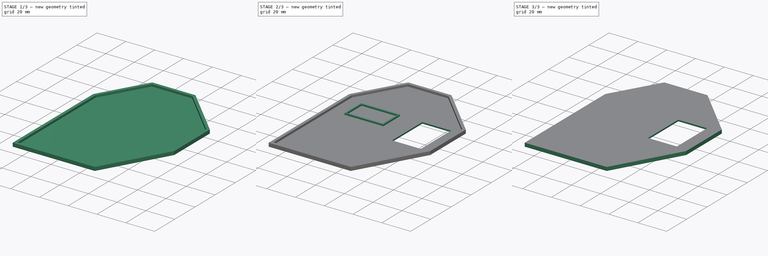
[diagram: build sequence overview — one tinted view per stage of 3, left to right]
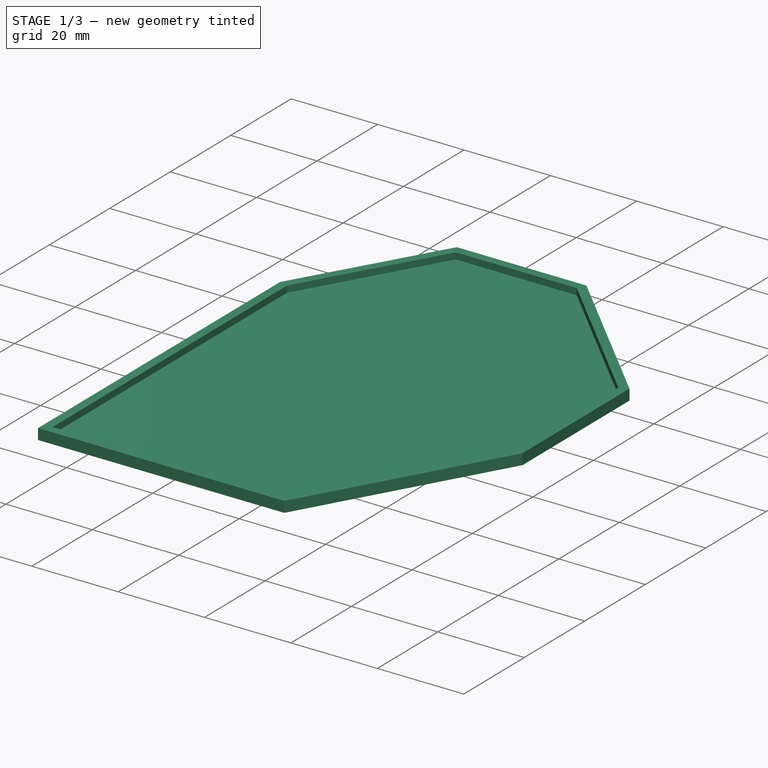
[diagram: stage 1 of 3 — iso view after this stage's code; geometry added in this stage tinted green]
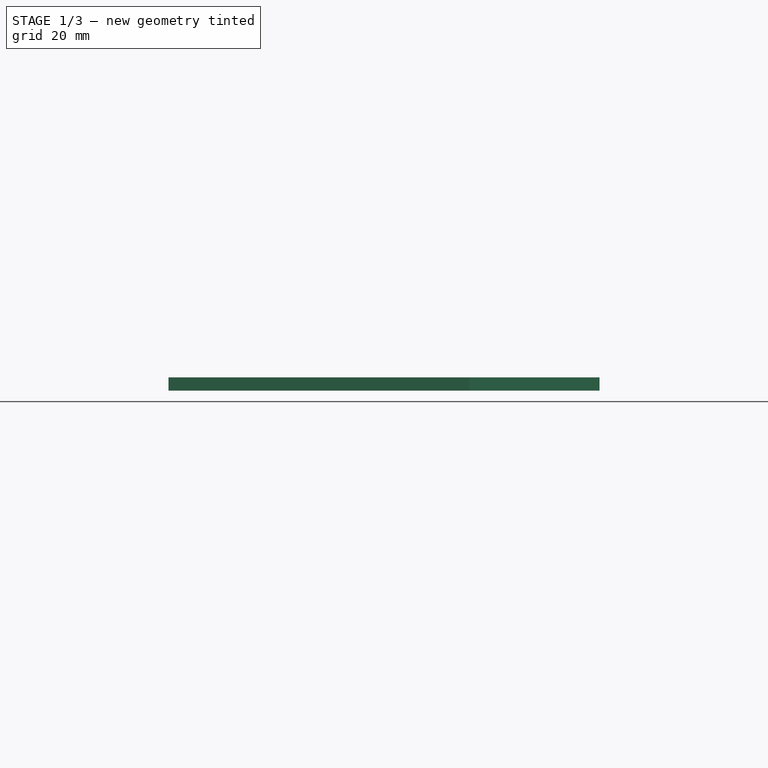
[diagram: stage 1 of 3 — front view after this stage's code; geometry added in this stage tinted green]
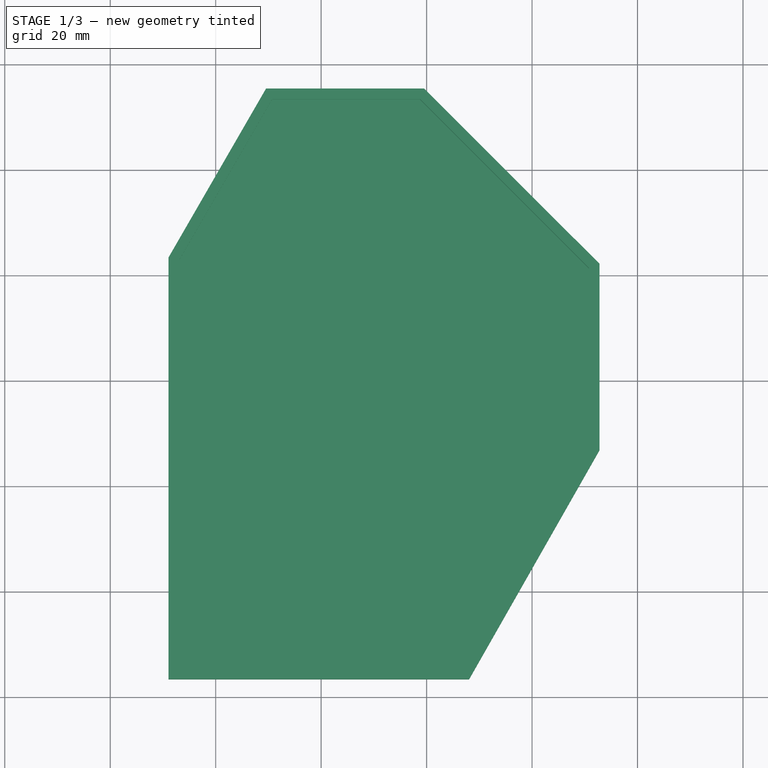
[diagram: stage 1 of 3 — top view after this stage's code; geometry added in this stage tinted green]
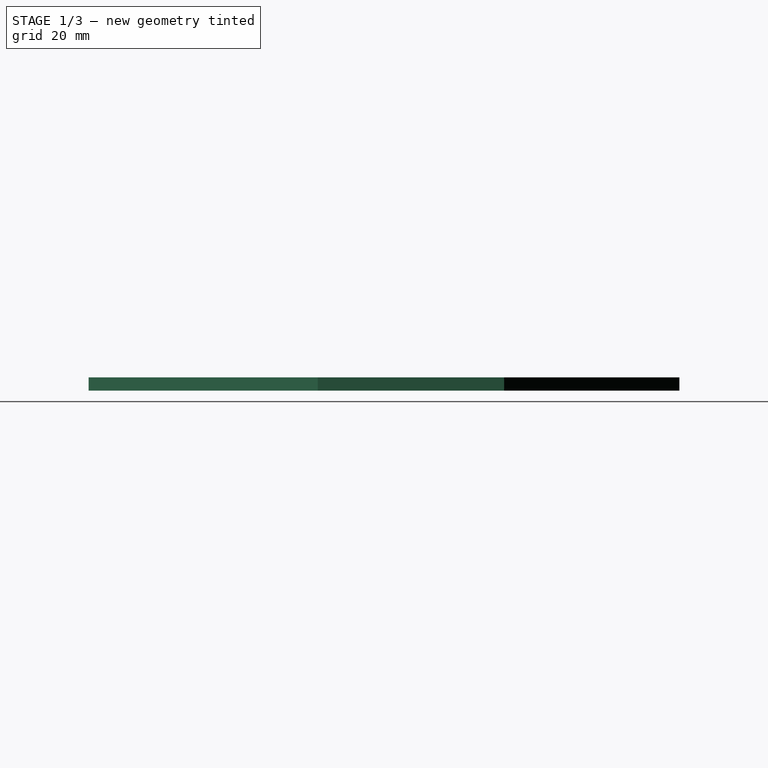
[diagram: stage 1 of 3 — right view after this stage's code; geometry added in this stage tinted green]
FCSTD DOCUMENT  (FreeCAD 0.17R10002 (Git))
Label: WaterMeas_holder
License: All rights reserved
LicenseURL: http://en.wikipedia.org/wiki/All_rights_reserved
objects: Sketcher::SketchObject×6, PartDesign::Pocket×4, PartDesign::Pad×2, PartDesign::Body×1, Part::Mirroring×1
note: 20 computed .brp shape members not serialized (recipe doc carries the construction recipe); baked Part::Feature solids carry a one-line shape summary decoded from their .brp

FEATURE [Sketcher::SketchObject] Sketch
  MapMode = 5
  Support = -> [XY_Plane]
  sketch-geometry (7):
    g0: LineSegment StartX=-28.9463 StartY=-36.6031 StartZ=0 EndX=-28.9463 EndY=43.3969 EndZ=0
    g1: LineSegment StartX=-28.9463 StartY=43.3969 StartZ=0 EndX=-10.4463 EndY=75.4399 EndZ=0
    g2: LineSegment StartX=-10.4463 StartY=75.4399 StartZ=0 EndX=19.5537 EndY=75.4399 EndZ=0
    g3: LineSegment StartX=19.5537 StartY=75.4399 StartZ=0 EndX=52.7877 EndY=42.2058 EndZ=0
    g4: LineSegment StartX=52.7877 StartY=42.2058 StartZ=0 EndX=52.7877 EndY=6.85066 EndZ=0
    g5: LineSegment StartX=52.7877 StartY=6.85066 StartZ=0 EndX=28.0537 EndY=-36.6031 EndZ=0
    g6: LineSegment StartX=28.0537 StartY=-36.6031 StartZ=0 EndX=-28.9463 EndY=-36.6031 EndZ=0
  constraints (19):
    c: Vertical(g0)
    c: Coincident(g0,g1)
    c: Coincident(g1,g2)
    c: Horizontal(g2)
    c: Coincident(g2,g3)
    c: Coincident(g3,g4)
    c: Coincident(g4,g5)
    c: Coincident(g5,g6)
    c: Coincident(g6,g0)
    c: Horizontal(g6)
    c: Vertical(g4)
    c: Distance(g6) = 57
    c: Distance(g5) = 50
    c: Distance(g1) = 37
    c: Distance(g2) = 30
    c: Distance(g0) = 80
    c: Angle(g1,g2) = 2.0944
    c: Angle(g2,g3) = 2.35619
    c: Distance(g3) = 47
FEATURE [PartDesign::Pad] Pad
  Length = 2.5
  Length2 = 100
  Profile = -> Sketch
  Type = 0
FEATURE [Sketcher::SketchObject] Sketch001
  ExternalGeometry = -> [Pad]
  MapMode = 5
  Placement = pos=(0,0,2.5) rot=(0,0,1;0rad)
  Support = -> [Pad]
  sketch-geometry (7):
    g0: LineSegment StartX=50.7877 StartY=41.3774 StartZ=0 EndX=18.7253 EndY=73.4399 EndZ=0
    g1: LineSegment StartX=18.7253 StartY=73.4399 StartZ=0 EndX=-9.29161 EndY=73.4399 EndZ=0
    g2: LineSegment StartX=-9.29161 StartY=73.4399 StartZ=0 EndX=-26.9463 EndY=42.861 EndZ=0
    g3: LineSegment StartX=-26.9463 StartY=42.861 StartZ=0 EndX=-26.9463 EndY=-34.6031 EndZ=0
    g4: LineSegment StartX=-26.9463 StartY=-34.6031 StartZ=0 EndX=26.8908 EndY=-34.6031 EndZ=0
    g5: LineSegment StartX=26.8908 StartY=-34.6031 StartZ=0 EndX=50.7877 EndY=7.37999 EndZ=0
    g6: LineSegment StartX=50.7877 StartY=7.37999 StartZ=0 EndX=50.7877 EndY=41.3774 EndZ=0
  constraints (21):
    c: Coincident(g0,g1)
    c: Coincident(g1,g2)
    c: Coincident(g2,g3)
    c: Vertical(g3)
    c: Coincident(g3,g4)
    c: Coincident(g4,g5)
    c: Coincident(g5,g6)
    c: Coincident(g6,g0)
    c: Parallel(g2,g-5)
    c: Parallel(g1,g-4)
    c: Parallel(g0,g-3)
    c: Parallel(g6,g-9)
    c: Parallel(g5,g-8)
    c: Parallel(g4,g-7)
    c: Distance(g-9,g0) = 2
    c: Distance(g-9,g6) = 2
    c: Distance(g-8,g5) = 2
    c: Distance(g-7,g4) = 2
    c: Distance(g-6,g3) = 2
    c: Distance(g-5,g2) = 2
    c: Distance(g-4,g1) = 2
FEATURE [PartDesign::Pocket] Pocket
  BaseFeature = -> Pad
  Length = 1.5
  Profile = -> Sketch001
  Type = 0
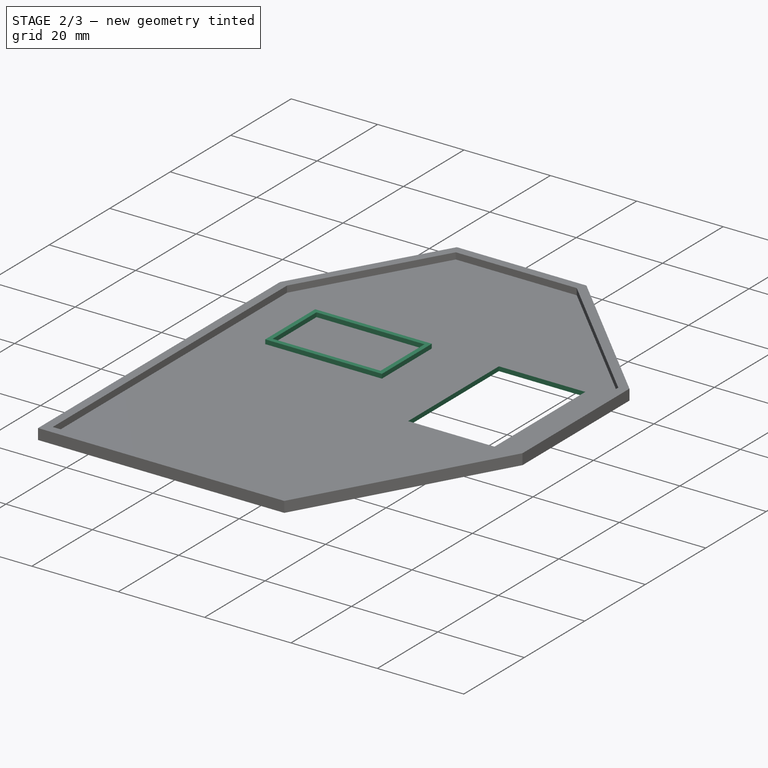
[diagram: stage 2 of 3 — iso view after this stage's code; geometry added in this stage tinted green]
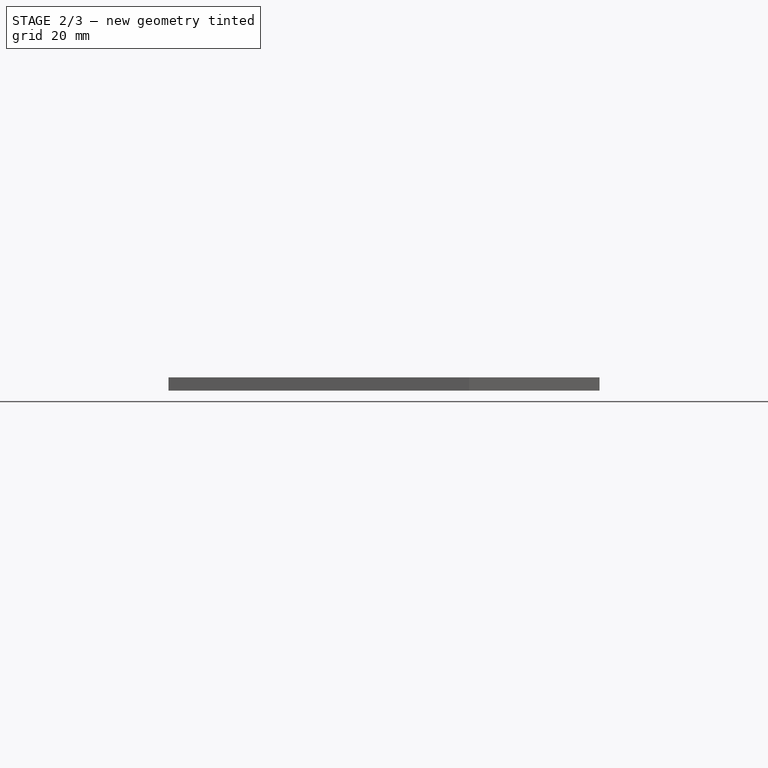
[diagram: stage 2 of 3 — front view after this stage's code; geometry added in this stage tinted green]
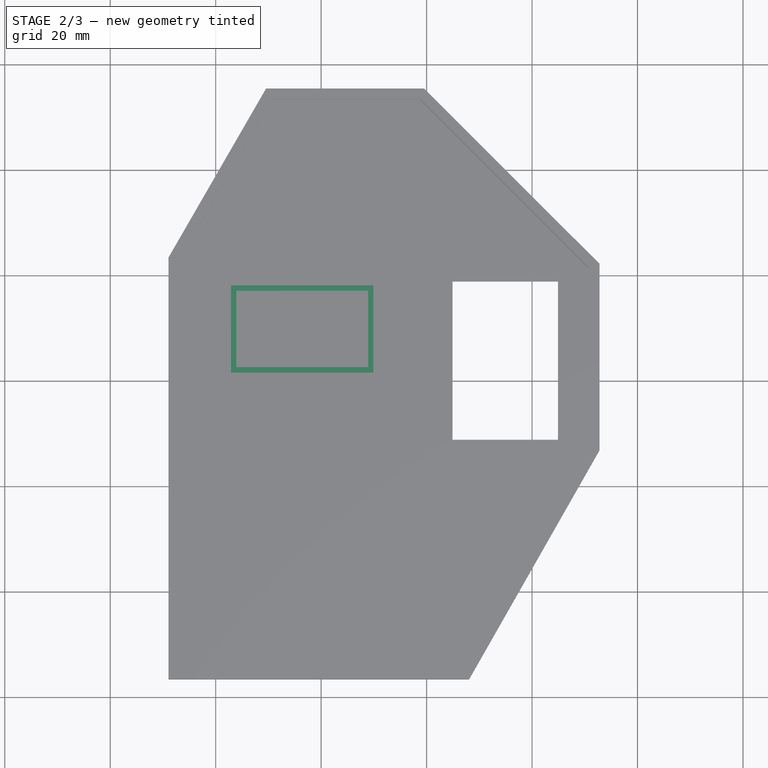
[diagram: stage 2 of 3 — top view after this stage's code; geometry added in this stage tinted green]
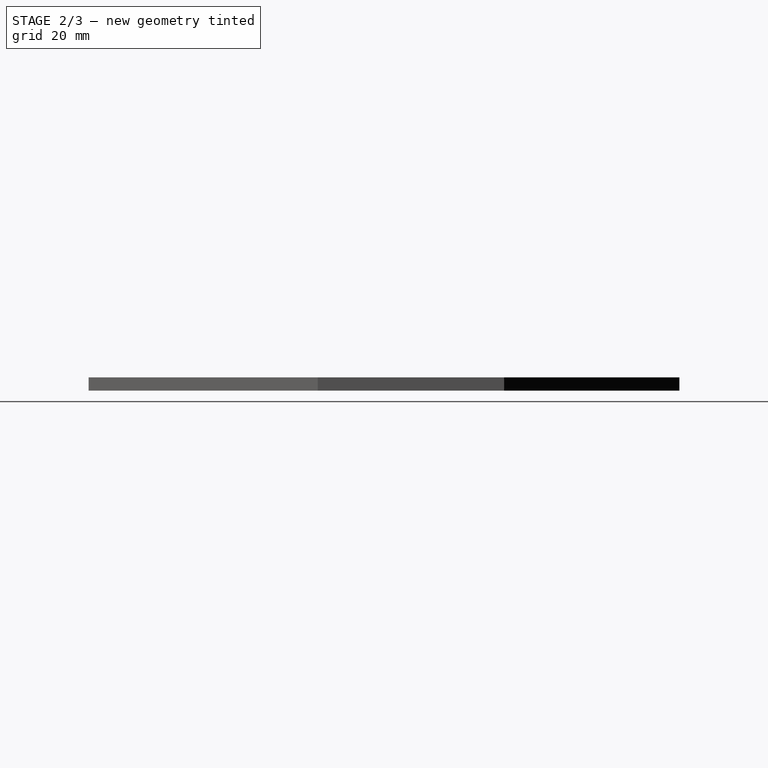
[diagram: stage 2 of 3 — right view after this stage's code; geometry added in this stage tinted green]
FEATURE [Sketcher::SketchObject] Sketch002
  ExternalGeometry = -> [Pocket]
  MapMode = 5
  Placement = pos=(0,0,1) rot=(0,0,1;0rad)
  Support = -> [Pocket]
  sketch-geometry (4):
    g0: LineSegment StartX=44.9101 StartY=38.8507 StartZ=0 EndX=24.9101 EndY=38.8507 EndZ=0
    g1: LineSegment StartX=24.9101 StartY=38.8507 StartZ=0 EndX=24.9101 EndY=8.85066 EndZ=0
    g2: LineSegment StartX=24.9101 StartY=8.85066 StartZ=0 EndX=44.9101 EndY=8.85066 EndZ=0
    g3: LineSegment StartX=44.9101 StartY=8.85066 StartZ=0 EndX=44.9101 EndY=38.8507 EndZ=0
  constraints (11):
    c: Coincident(g0,g1)
    c: Coincident(g1,g2)
    c: Coincident(g2,g3)
    c: Coincident(g3,g0)
    c: Horizontal(g0)
    c: Horizontal(g2)
    c: Vertical(g1)
    c: Vertical(g3)
    c: Distance(g0) = 20
    c: Distance(g1) = 30
    c: Distance(g-3,g2) = 2
FEATURE [PartDesign::Pocket] Pocket001
  BaseFeature = -> Pocket
  Length = 1
  Profile = -> Sketch002
  Type = 0
FEATURE [Sketcher::SketchObject] Sketch004
  MapMode = 5
  Placement = pos=(0,0,1) rot=(0,0,1;0rad)
  Support = -> [Pocket001]
  sketch-geometry (4):
    g0: LineSegment StartX=-17.093 StartY=38.1024 StartZ=0 EndX=9.90699 EndY=38.1024 EndZ=0
    g1: LineSegment StartX=9.90699 StartY=38.1024 StartZ=0 EndX=9.90699 EndY=21.6024 EndZ=0
    g2: LineSegment StartX=9.90699 StartY=21.6024 StartZ=0 EndX=-17.093 EndY=21.6024 EndZ=0
    g3: LineSegment StartX=-17.093 StartY=21.6024 StartZ=0 EndX=-17.093 EndY=38.1024 EndZ=0
  constraints (10):
    c: Coincident(g0,g1)
    c: Coincident(g1,g2)
    c: Coincident(g2,g3)
    c: Coincident(g3,g0)
    c: Horizontal(g0)
    c: Horizontal(g2)
    c: Vertical(g1)
    c: Vertical(g3)
    c: Distance(g1) = 16.5
    c: Distance(g0) = 27
FEATURE [PartDesign::Pad] Pad001
  BaseFeature = -> Pocket001
  Length = 1
  Length2 = 100
  Profile = -> Sketch004
  Type = 0
FEATURE [Sketcher::SketchObject] Sketch005
  ExternalGeometry = -> [Pad001]
  MapMode = 5
  Placement = pos=(0,0,2) rot=(0,0,1;0rad)
  Support = -> [Pad001]
  sketch-geometry (4):
    g0: LineSegment StartX=-16.093 StartY=37.1024 StartZ=0 EndX=8.90699 EndY=37.1024 EndZ=0
    g1: LineSegment StartX=8.90699 StartY=37.1024 StartZ=0 EndX=8.90699 EndY=22.6024 EndZ=0
    g2: LineSegment StartX=8.90699 StartY=22.6024 StartZ=0 EndX=-16.093 EndY=22.6024 EndZ=0
    g3: LineSegment StartX=-16.093 StartY=22.6024 StartZ=0 EndX=-16.093 EndY=37.1024 EndZ=0
  constraints (12):
    c: Coincident(g0,g1)
    c: Coincident(g1,g2)
    c: Coincident(g2,g3)
    c: Coincident(g3,g0)
    c: Horizontal(g0)
    c: Horizontal(g2)
    c: Vertical(g1)
    c: Vertical(g3)
    c: Distance(g-4,g0) = 1
    c: Distance(g-5,g1) = 1
    c: Distance(g-6,g2) = 1
    c: Distance(g-6,g3) = 1
FEATURE [PartDesign::Pocket] Pocket002
  BaseFeature = -> Pad001
  Length = 1
  Profile = -> Sketch005
  Type = 0
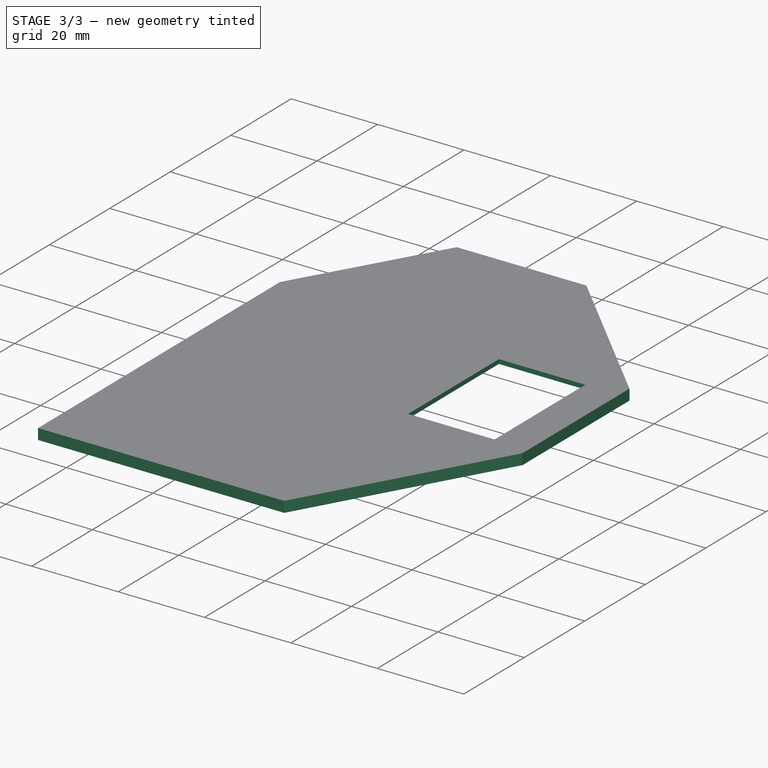
[diagram: stage 3 of 3 — iso view after this stage's code; geometry added in this stage tinted green]
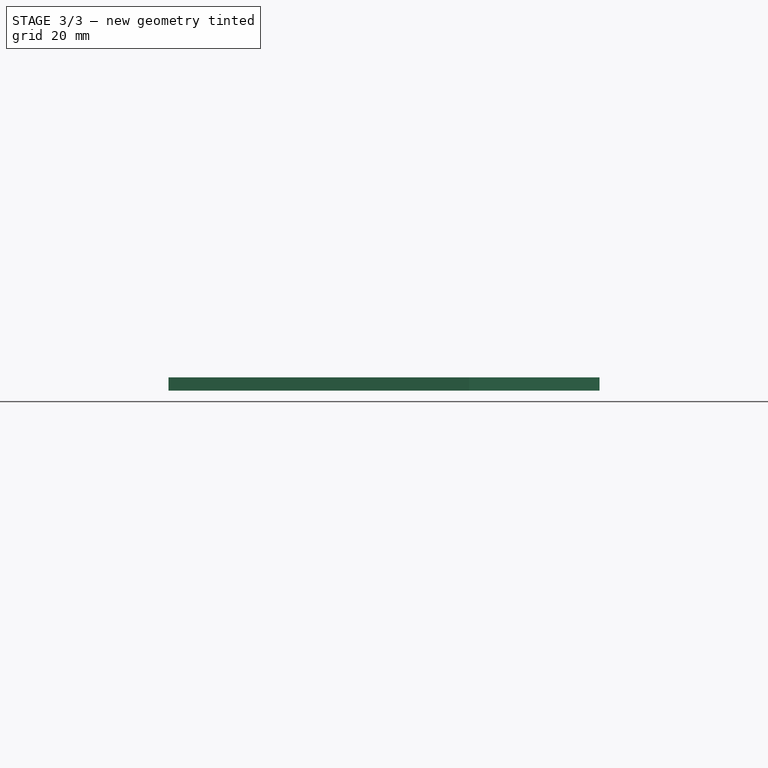
[diagram: stage 3 of 3 — front view after this stage's code; geometry added in this stage tinted green]
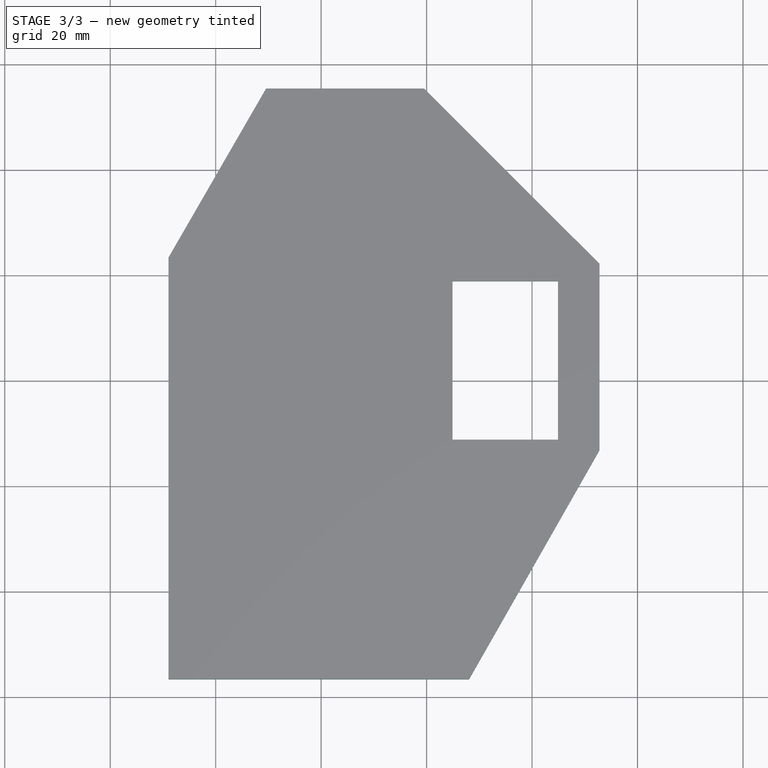
[diagram: stage 3 of 3 — top view after this stage's code; geometry added in this stage tinted green]
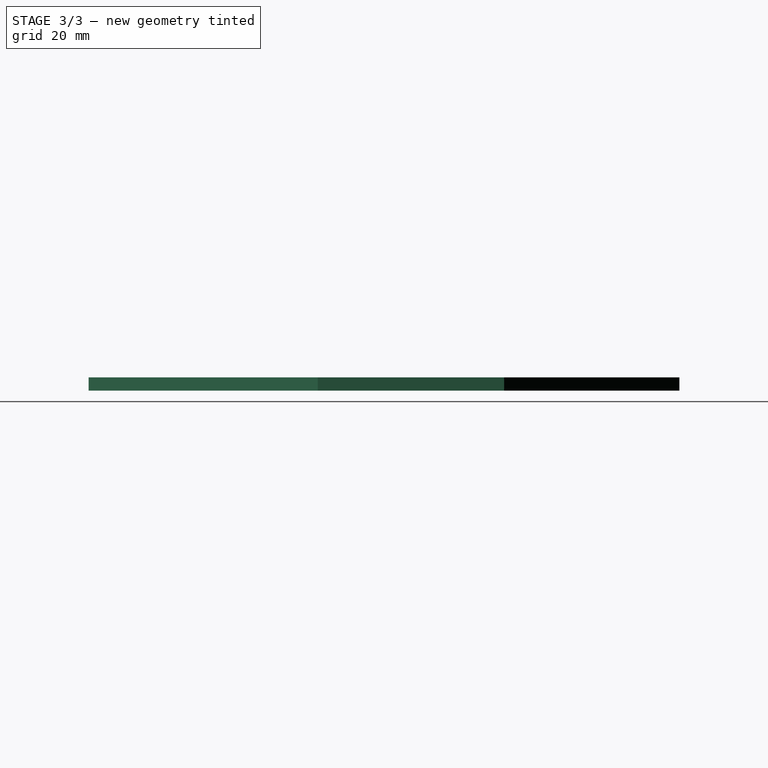
[diagram: stage 3 of 3 — right view after this stage's code; geometry added in this stage tinted green]
FEATURE [Sketcher::SketchObject] Sketch006
  ExternalGeometry = -> [Pocket002]
  MapMode = 5
  Placement = pos=(0,0,2) rot=(0,0,1;0rad)
  Support = -> [Pocket002]
  sketch-geometry (4):
    g0: LineSegment StartX=7.63029 StartY=35.1024 StartZ=0 EndX=10.8652 EndY=35.1024 EndZ=0
    g1: LineSegment StartX=10.8652 StartY=35.1024 StartZ=0 EndX=10.8652 EndY=24.6024 EndZ=0
    g2: LineSegment StartX=10.8652 StartY=24.6024 StartZ=0 EndX=7.63029 EndY=24.6024 EndZ=0
    g3: LineSegment StartX=7.63029 StartY=24.6024 StartZ=0 EndX=7.63029 EndY=35.1024 EndZ=0
  constraints (10):
    c: Coincident(g0,g1)
    c: Coincident(g1,g2)
    c: Coincident(g2,g3)
    c: Coincident(g3,g0)
    c: Horizontal(g0)
    c: Horizontal(g2)
    c: Vertical(g1)
    c: Vertical(g3)
    c: Distance(g-4,g0) = 2
    c: Distance(g-4,g2) = 2
FEATURE [PartDesign::Pocket] Pocket003
  BaseFeature = -> Pocket002
  Length = 1
  Profile = -> Sketch006
  Type = 0
FEATURE [PartDesign::Body] Body
  Group = -> [Sketch,Pad,Sketch001,Pocket,Sketch002,Pocket001,Sketch004,Pad001,Sketch005,Pocket002,Sketch006,Pocket003]
  Origin = -> BodyOrigin
  Tip = -> Pocket002
FEATURE [Part::Mirroring] Part__Mirroring  label="Pocket003 (Mirror #1)"
  Base = (0,0,0)
  Normal = (0,0,1)
  Source = -> Pocket003
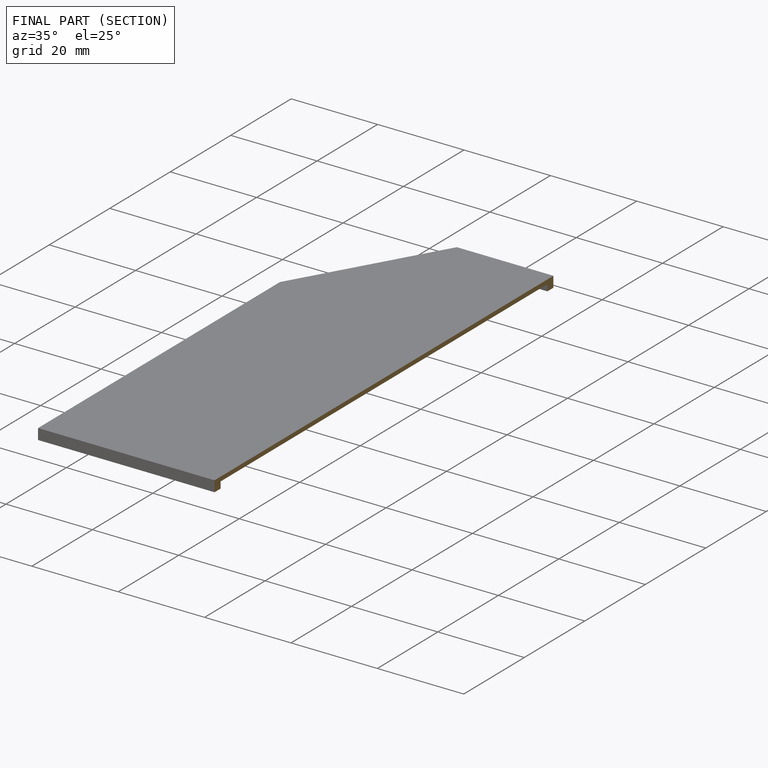
[diagram: finished part — half-section view (interior)]
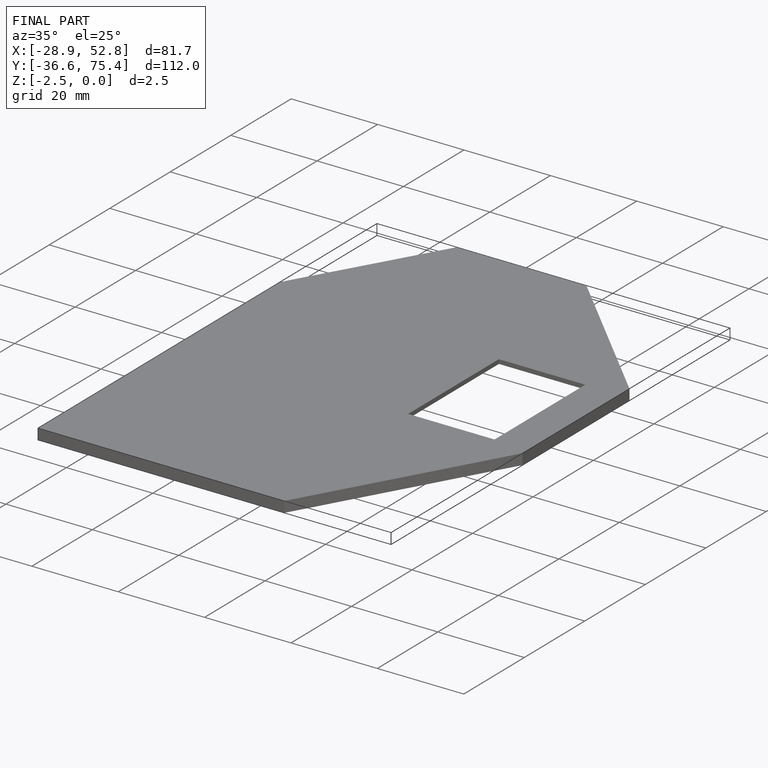
[diagram: finished part — iso view with bounding-box wireframe]
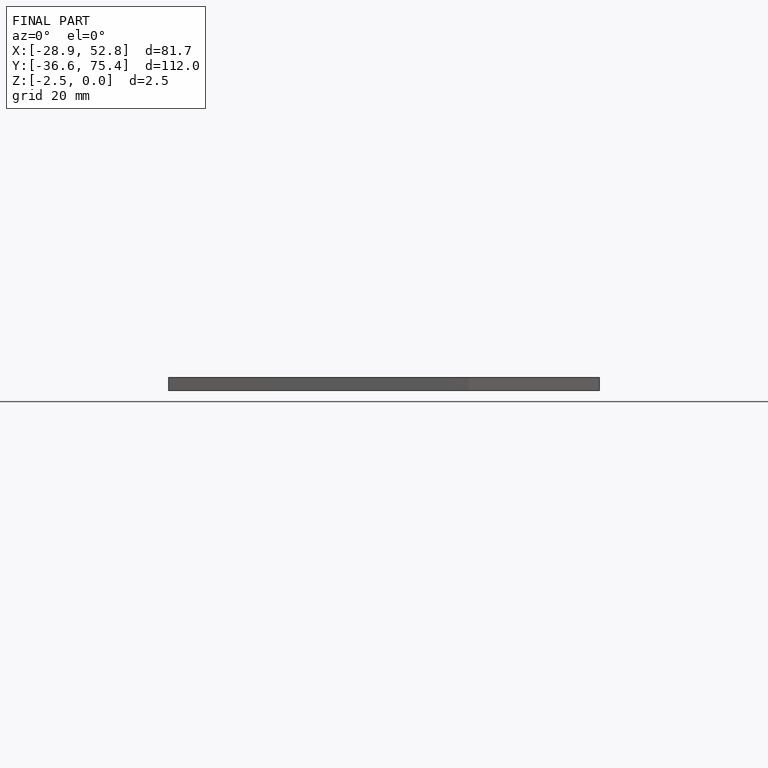
[diagram: finished part — front view with bounding-box wireframe]
